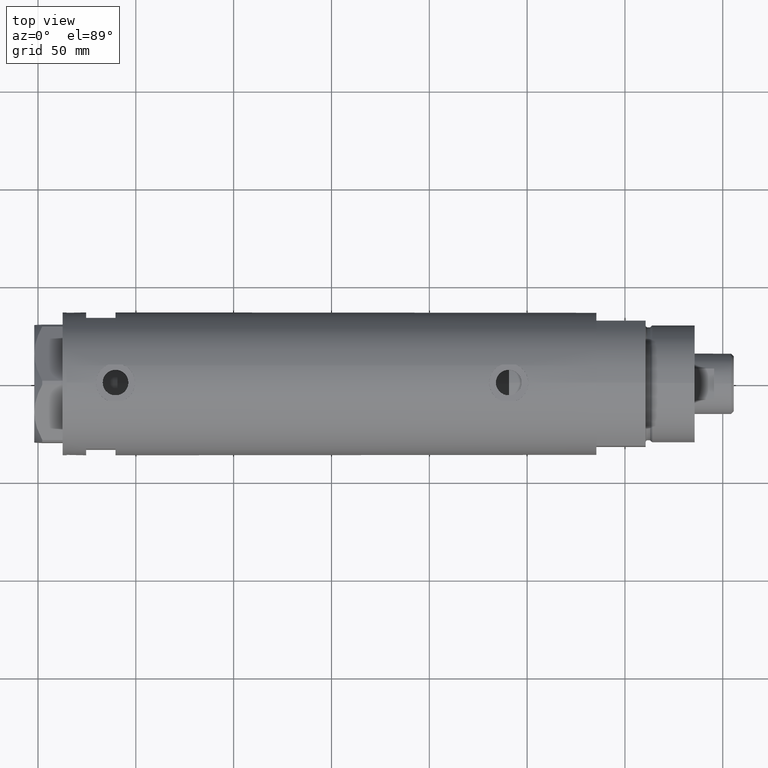
[diagram: clean part render]
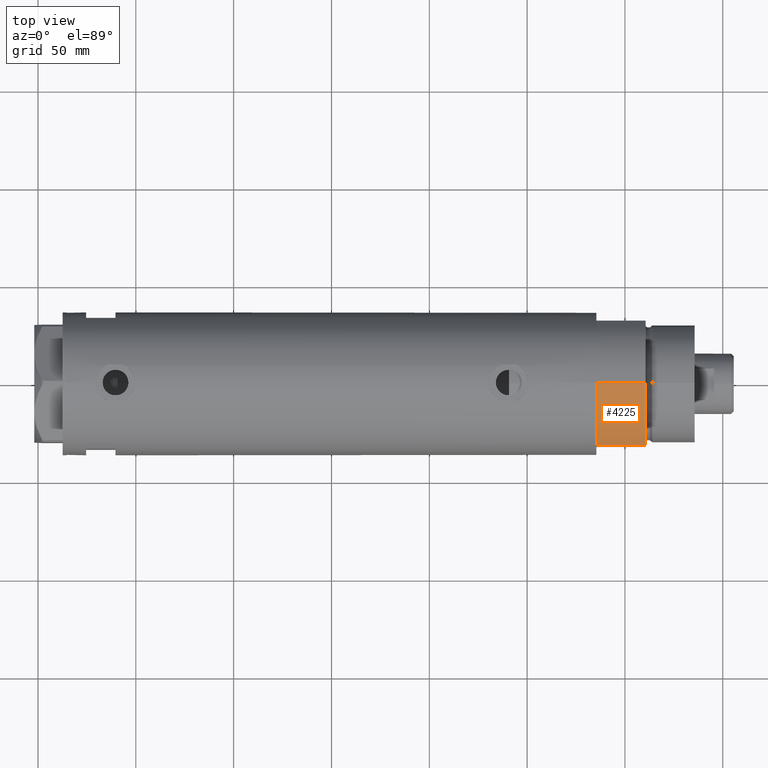
[diagram: same view with one face highlighted and labeled with its STEP entity id]
A machine part, top view. The second image highlights one B-rep face of the part: STEP entity #4225.
In plain terms, the highlighted cylindrical surface (partial cylindrical patch) has radius 36.5 mm, axis along (-1, -0, 0).
Its self-contained STEP definition (entity closure, byte-faithful):
#163 = CARTESIAN_POINT ( 'NONE',  ( -17.55704986607943141, -32.00000000000000000, 0.000000000000000000 ) ) ;
#250 = LINE ( 'NONE', #163, #587 ) ;
#278 = CARTESIAN_POINT ( 'NONE',  ( -17.55704986607943496, -32.00000000000000000, 25.19999999999999929 ) ) ;
#290 = EDGE_CURVE ( 'NONE', #4375, #2656, #250, .T. ) ;
#296 = EDGE_CURVE ( 'NONE', #1375, #2864, #2230, .T. ) ;
#539 = DIRECTION ( 'NONE',  ( -0.000000000000000000, -0.000000000000000000, -1.000000000000000000 ) ) ;
#587 = VECTOR ( 'NONE', #1247, 1000.000000000000000 ) ;
#616 = CYLINDRICAL_SURFACE ( 'NONE', #3228, 36.50000000000000000 ) ;
#618 = CARTESIAN_POINT ( 'NONE',  ( 0.000000000000000000, 0.000000000000000000, 25.19999999999999929 ) ) ;
#766 = CARTESIAN_POINT ( 'NONE',  ( -36.50000000000000000, 0.000000000000000000, 0.000000000000000000 ) ) ;
#813 = AXIS2_PLACEMENT_3D ( 'NONE', #618, #1986, #1707 ) ;
#1001 = AXIS2_PLACEMENT_3D ( 'NONE', #4470, #2750, #2581 ) ;
#1194 = CARTESIAN_POINT ( 'NONE',  ( -36.50000000000000000, 0.000000000000000000, 25.19999999999999929 ) ) ;
#1236 = ORIENTED_EDGE ( 'NONE', *, *, #290, .T. ) ;
#1247 = DIRECTION ( 'NONE',  ( -0.000000000000000000, -0.000000000000000000, 1.000000000000000000 ) ) ;
#1375 = VERTEX_POINT ( 'NONE', #1972 ) ;
#1471 = EDGE_LOOP ( 'NONE', ( #3254, #2043, #2234, #1236 ) ) ;
#1647 = CARTESIAN_POINT ( 'NONE',  ( 0.000000000000000000, 0.000000000000000000, 25.19999999999999929 ) ) ;
#1707 = DIRECTION ( 'NONE',  ( 1.000000000000000000, 0.000000000000000000, 0.000000000000000000 ) ) ;
#1972 = CARTESIAN_POINT ( 'NONE',  ( -36.50000000000000000, 0.000000000000000000, 25.19999999999999929 ) ) ;
#1986 = DIRECTION ( 'NONE',  ( 0.000000000000000000, 0.000000000000000000, 1.000000000000000000 ) ) ;
#2043 = ORIENTED_EDGE ( 'NONE', *, *, #296, .T. ) ;
#2230 = LINE ( 'NONE', #1194, #3944 ) ;
#2234 = ORIENTED_EDGE ( 'NONE', *, *, #2744, .T. ) ;
#2335 = FACE_OUTER_BOUND ( 'NONE', #1471, .T. ) ;
#2581 = DIRECTION ( 'NONE',  ( 1.000000000000000000, 0.000000000000000000, 0.000000000000000000 ) ) ;
#2656 = VERTEX_POINT ( 'NONE', #278 ) ;
#2744 = EDGE_CURVE ( 'NONE', #2864, #4375, #2927, .T. ) ;
#2750 = DIRECTION ( 'NONE',  ( 0.000000000000000000, 0.000000000000000000, 1.000000000000000000 ) ) ;
#2773 = CIRCLE ( 'NONE', #813, 36.50000000000000000 ) ;
#2864 = VERTEX_POINT ( 'NONE', #766 ) ;
#2927 = CIRCLE ( 'NONE', #1001, 36.50000000000000000 ) ;
#3228 = AXIS2_PLACEMENT_3D ( 'NONE', #1647, #4452, #3576 ) ;
#3254 = ORIENTED_EDGE ( 'NONE', *, *, #3732, .F. ) ;
#3576 = DIRECTION ( 'NONE',  ( -1.000000000000000000, 0.000000000000000000, 0.000000000000000000 ) ) ;
#3732 = EDGE_CURVE ( 'NONE', #1375, #2656, #2773, .T. ) ;
#3944 = VECTOR ( 'NONE', #539, 1000.000000000000000 ) ;
#3945 = CARTESIAN_POINT ( 'NONE',  ( -17.55704986607943496, -32.00000000000000000, 0.000000000000000000 ) ) ;
#4225 = ADVANCED_FACE ( 'NONE', ( #2335 ), #616, .T. ) ;
#4375 = VERTEX_POINT ( 'NONE', #3945 ) ;
#4452 = DIRECTION ( 'NONE',  ( -0.000000000000000000, -0.000000000000000000, -1.000000000000000000 ) ) ;
#4470 = CARTESIAN_POINT ( 'NONE',  ( 0.000000000000000000, 0.000000000000000000, 0.000000000000000000 ) ) ;